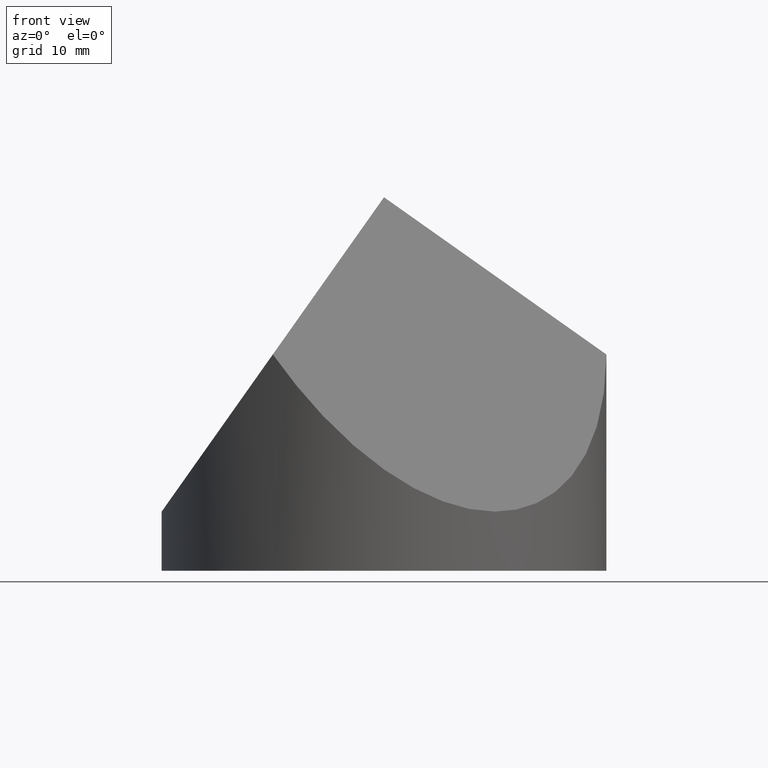
[diagram: clean part render]
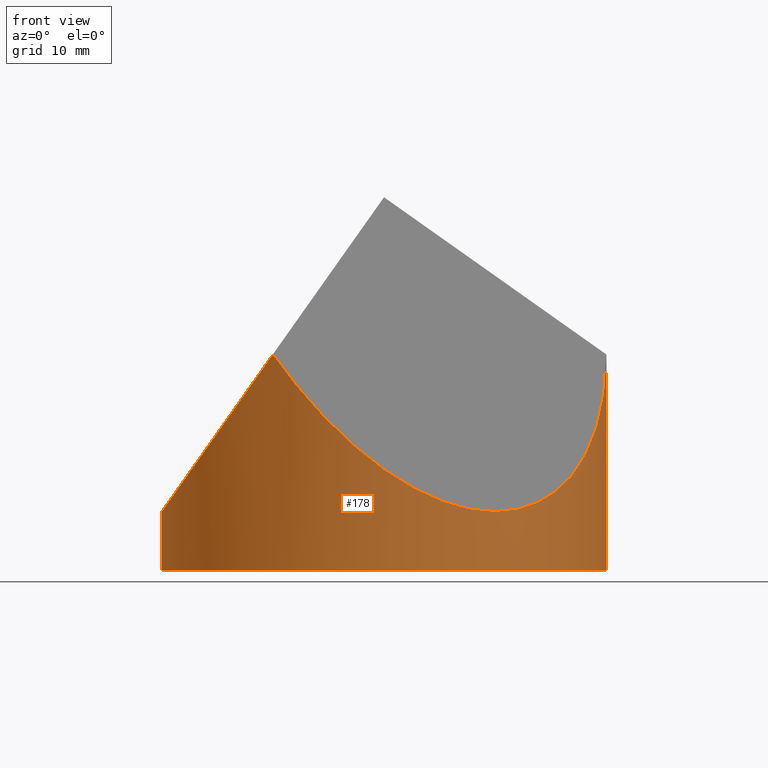
[diagram: same view with one face highlighted and labeled with its STEP entity id]
A machine part, front view. The second image highlights one B-rep face of the part: STEP entity #178.
In plain terms, the highlighted cylindrical surface (partial cylindrical patch) has radius 25 mm, axis along (-0, -0, -1).
Its self-contained STEP definition (entity closure, byte-faithful):
#15 = EDGE_CURVE ( 'NONE', #221, #181, #31, .T. ) ;
#17 = CARTESIAN_POINT ( 'NONE',  ( -12.50000000000003000, -21.65063509461096900, 24.32600190598651200 ) ) ;
#18 = EDGE_CURVE ( 'NONE', #221, #30, #122, .T. ) ;
#28 = CIRCLE ( 'NONE', #187, 25.00000000000000000 ) ;
#30 = VERTEX_POINT ( 'NONE', #17 ) ;
#31 = LINE ( 'NONE', #183, #81 ) ;
#38 = CARTESIAN_POINT ( 'NONE',  ( -25.00000000000000700, -9.150635094610953100, 6.652003811973096400 ) ) ;
#43 = DIRECTION ( 'NONE',  ( 1.000000000000000000, 0.0000000000000000000, 0.0000000000000000000 ) ) ;
#58 = VERTEX_POINT ( 'NONE', #132 ) ;
#63 = AXIS2_PLACEMENT_3D ( 'NONE', #308, #136, #272 ) ;
#65 = CARTESIAN_POINT ( 'NONE',  ( -25.00000000000000000, 0.0000000000000000000, 42.00000000000000000 ) ) ;
#81 = VECTOR ( 'NONE', #161, 1000.000000000000000 ) ;
#83 = CARTESIAN_POINT ( 'NONE',  ( -12.50000000000003000, -21.65063509461096900, 24.32600190598651200 ) ) ;
#86 = CARTESIAN_POINT ( 'NONE',  ( 6.249999999999992000, -32.47595264191646400, -2.184995235033657700 ) ) ;
#88 = ORIENTED_EDGE ( 'NONE', *, *, #152, .T. ) ;
#92 = DIRECTION ( 'NONE',  ( 0.0000000000000000000, 0.0000000000000000000, 1.000000000000000000 ) ) ;
#103 = LINE ( 'NONE', #65, #157 ) ;
#115 = VERTEX_POINT ( 'NONE', #158 ) ;
#119 = CARTESIAN_POINT ( 'NONE',  ( 25.00000000000001400, -4.874894994984150700E-015, 24.32600190598661900 ) ) ;
#122 =( BOUNDED_CURVE ( )  B_SPLINE_CURVE ( 3, ( #130, #241, #86, #213 ),
 .UNSPECIFIED., .F., .T. ) 
 B_SPLINE_CURVE_WITH_KNOTS ( ( 4, 4 ),
 ( 5.235987755982986200, 7.330382858376182800 ),
 .UNSPECIFIED. ) 
 CURVE ( )  GEOMETRIC_REPRESENTATION_ITEM ( )  RATIONAL_B_SPLINE_CURVE ( ( 1.000000000000000000, 0.6666666666666663000, 0.6666666666666663000, 1.000000000000000000 ) ) 
 REPRESENTATION_ITEM ( '' )  );
#125 = ORIENTED_EDGE ( 'NONE', *, *, #261, .T. ) ;
#130 = CARTESIAN_POINT ( 'NONE',  ( 25.00000000000001400, -4.874894994984150700E-015, 24.32600190598661900 ) ) ;
#132 = CARTESIAN_POINT ( 'NONE',  ( -25.00000000000000000, 0.0000000000000000000, 6.652003811973103500 ) ) ;
#136 = DIRECTION ( 'NONE',  ( -0.0000000000000000000, -0.0000000000000000000, -1.000000000000000000 ) ) ;
#145 = ORIENTED_EDGE ( 'NONE', *, *, #18, .T. ) ;
#150 = ORIENTED_EDGE ( 'NONE', *, *, #209, .T. ) ;
#152 = EDGE_CURVE ( 'NONE', #30, #58, #294, .T. ) ;
#157 = VECTOR ( 'NONE', #164, 1000.000000000000000 ) ;
#158 = CARTESIAN_POINT ( 'NONE',  ( -25.00000000000000000, 0.0000000000000000000, 0.0000000000000000000 ) ) ;
#161 = DIRECTION ( 'NONE',  ( -0.0000000000000000000, -0.0000000000000000000, -1.000000000000000000 ) ) ;
#164 = DIRECTION ( 'NONE',  ( -0.0000000000000000000, -0.0000000000000000000, -1.000000000000000000 ) ) ;
#178 = ADVANCED_FACE ( 'NONE', ( #198 ), #284, .T. ) ;
#181 = VERTEX_POINT ( 'NONE', #312 ) ;
#183 = CARTESIAN_POINT ( 'NONE',  ( 25.00000000000000000, 3.061616997868382300E-015, 42.00000000000000000 ) ) ;
#185 = CARTESIAN_POINT ( 'NONE',  ( -20.42468245269452600, -17.07531754730547000, 13.12113610081976100 ) ) ;
#187 = AXIS2_PLACEMENT_3D ( 'NONE', #194, #92, #43 ) ;
#188 = CARTESIAN_POINT ( 'NONE',  ( -25.00000000000000000, 0.0000000000000000000, 6.652003811973103500 ) ) ;
#194 = CARTESIAN_POINT ( 'NONE',  ( 0.0000000000000000000, 0.0000000000000000000, 0.0000000000000000000 ) ) ;
#198 = FACE_OUTER_BOUND ( 'NONE', #295, .T. ) ;
#209 = EDGE_CURVE ( 'NONE', #115, #181, #28, .T. ) ;
#213 = CARTESIAN_POINT ( 'NONE',  ( -12.50000000000003000, -21.65063509461096900, 24.32600190598651200 ) ) ;
#221 = VERTEX_POINT ( 'NONE', #119 ) ;
#241 = CARTESIAN_POINT ( 'NONE',  ( 25.00000000000001400, -21.65063509461098000, -2.184995235033602200 ) ) ;
#261 = EDGE_CURVE ( 'NONE', #58, #115, #103, .T. ) ;
#272 = DIRECTION ( 'NONE',  ( -1.000000000000000000, 0.0000000000000000000, 0.0000000000000000000 ) ) ;
#284 = CYLINDRICAL_SURFACE ( 'NONE', #63, 25.00000000000000000 ) ;
#294 =( BOUNDED_CURVE ( )  B_SPLINE_CURVE ( 3, ( #83, #185, #38, #188 ),
 .UNSPECIFIED., .F., .F. ) 
 B_SPLINE_CURVE_WITH_KNOTS ( ( 4, 4 ),
 ( 5.235987755982989700, 6.283185307179586200 ),
 .UNSPECIFIED. ) 
 CURVE ( )  GEOMETRIC_REPRESENTATION_ITEM ( )  RATIONAL_B_SPLINE_CURVE ( ( 1.000000000000000000, 0.9106836025229592100, 0.9106836025229592100, 1.000000000000000000 ) ) 
 REPRESENTATION_ITEM ( '' )  );
#295 = EDGE_LOOP ( 'NONE', ( #303, #145, #88, #125, #150 ) ) ;
#303 = ORIENTED_EDGE ( 'NONE', *, *, #15, .F. ) ;
#308 = CARTESIAN_POINT ( 'NONE',  ( 0.0000000000000000000, 0.0000000000000000000, 42.00000000000000000 ) ) ;
#312 = CARTESIAN_POINT ( 'NONE',  ( 25.00000000000000000, 3.061616997868382300E-015, 0.0000000000000000000 ) ) ;